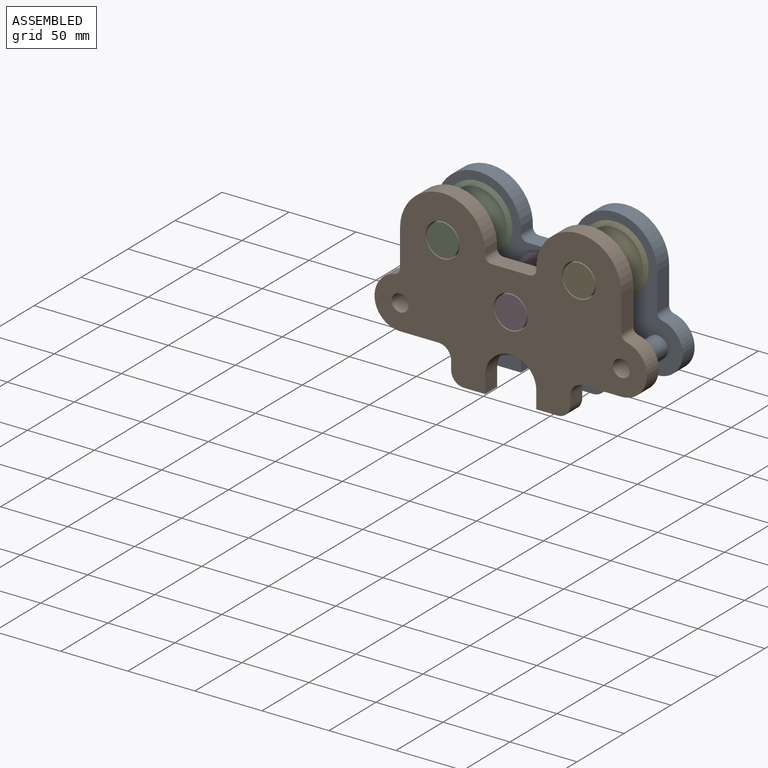
[diagram: assembled view]
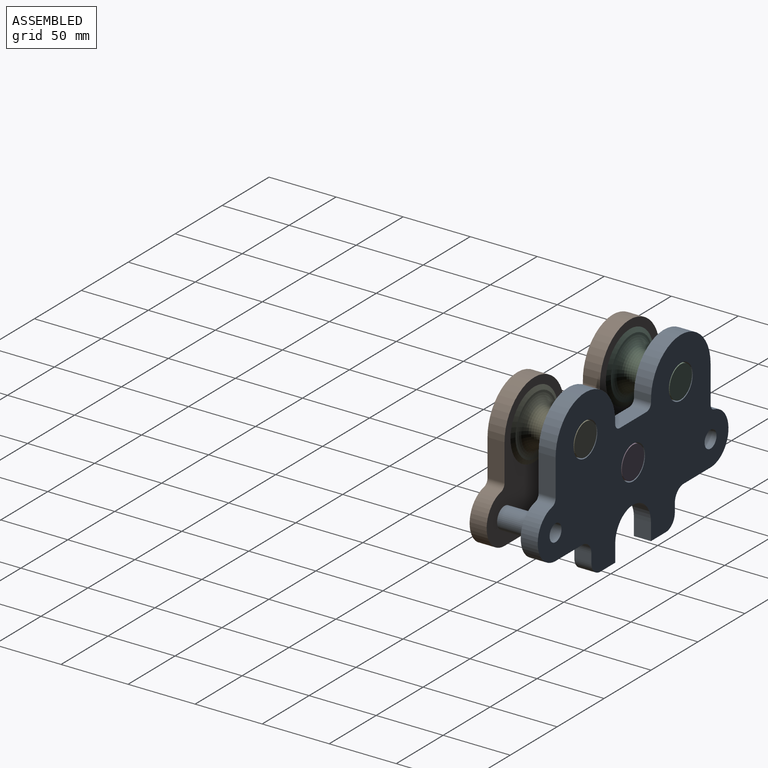
[diagram: assembled view, second angle]
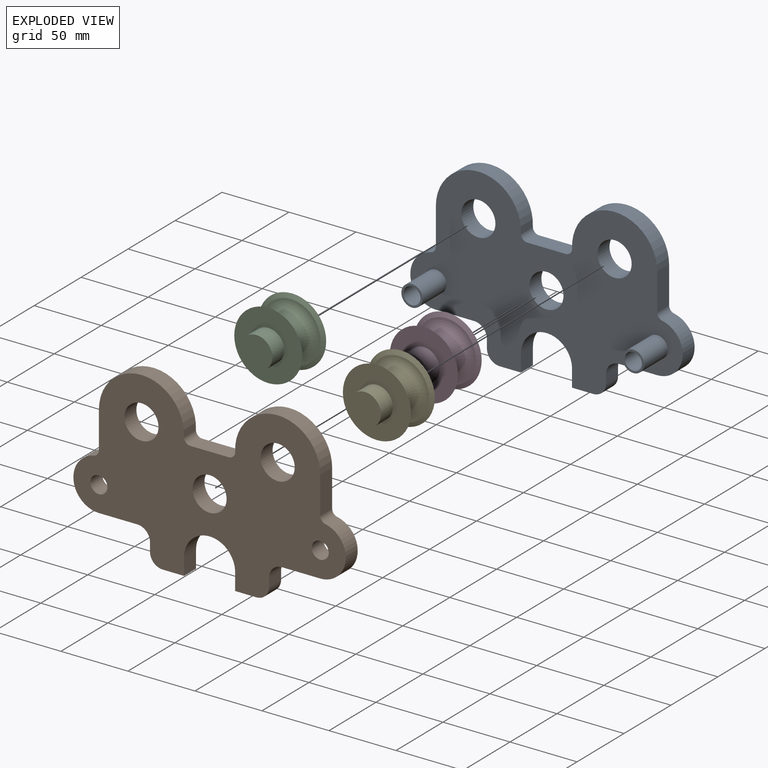
[diagram: exploded view]
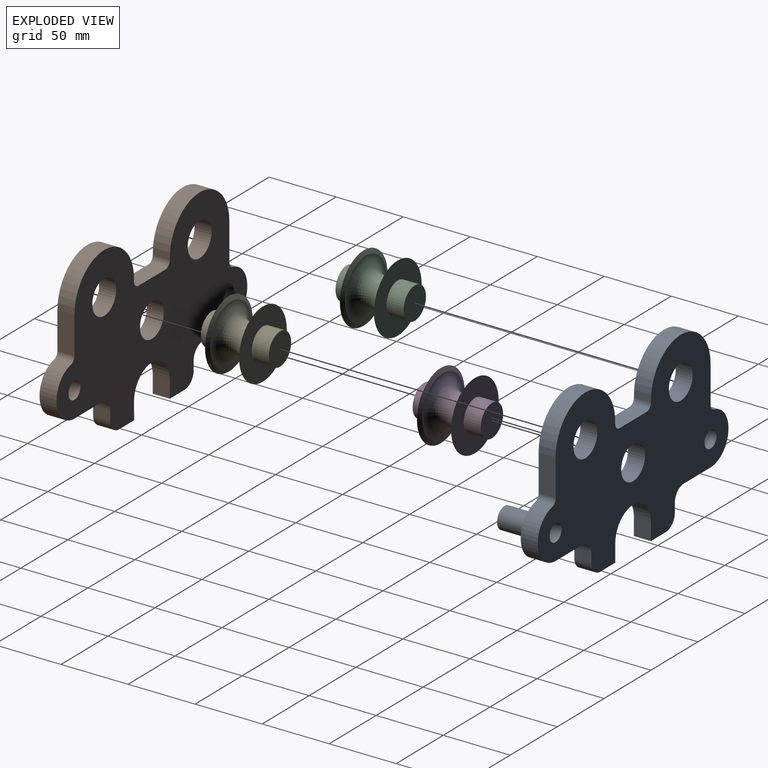
[diagram: exploded view, second angle]
ASSEMBLY  parts=5 mates=4
PART A: 35 faces, bbox 203.2x38.1x127 mm
  f0: cylinder r=9.53mm len=12.7mm, axis (0,1,0), area 190mm2, adj f1,f24,f29,f30
  f1: plane 15.89x12.7mm, normal (0,0,-1), area 201.9mm2, adj f0,f2,f29,f30
  f2: plane 12.7x12.7mm, normal (1,0,0), area 161.3mm2, adj f1,f3,f29,f30
  f3: cylinder r=19.05mm len=38.07mm, axis (0,1,0), area 746.4mm2, adj f2,f4,f29,f30
  f4: plane 13.77x12.7mm, normal (-1,0,0), area 174.9mm2, adj f3,f5,f29,f30
  f5: plane 15.89x12.7mm, normal (0,0,-1), area 201.9mm2, adj f4,f6,f29,f30
  f6: cylinder r=9.53mm len=12.7mm, axis (0,1,0), area 190mm2, adj f5,f7,f29,f30
  f7: plane 12.7x6.35mm, normal (1,0,0), area 80.6mm2, adj f6,f8,f29,f30
  f8: cylinder r=9.53mm len=12.7mm, axis (0,1,0), area 190mm2, adj f7,f9,f29,f30
  f9: plane 28.58x12.7mm, normal (0,0,-1), area 362.9mm2, adj f8,f10,f29,f30
  f10: cylinder r=19.05mm len=37.72mm, axis (0,1,0), area 711.3mm2, adj f9,f11,f29,f30
  f11: cylinder r=4.76mm len=12.7mm, axis (0,1,0), area 82.8mm2, adj f10,f12,f29,f30
  f12: plane 27.47x12.7mm, normal (1,0,0), area 348.9mm2, adj f11,f13,f29,f30
  f13: cylinder r=31.75mm len=63.5mm, axis (0,1,0), area 1284.3mm2, adj f12,f14,f29,f30
  f14: cylinder r=4.76mm len=12.7mm, axis (0,1,0), area 97.6mm2, adj f13,f15,f29,f30
  f15: plane 28.64x12.7mm, normal (0,0,1), area 363.8mm2, adj f14,f16,f29,f30
  f16: cylinder r=4.76mm len=12.7mm, axis (0,1,0), area 97.6mm2, adj f15,f17,f29,f30
  f17: cylinder r=31.75mm len=63.5mm, axis (0,1,0), area 1284.3mm2, adj f16,f18,f29,f30
  f18: plane 27.47x12.7mm, normal (-1,0,0), area 348.9mm2, adj f17,f19,f29,f30
  f19: cylinder r=4.76mm len=12.7mm, axis (0,1,0), area 82.8mm2, adj f18,f20,f29,f30
  f20: cylinder r=19.05mm len=37.72mm, axis (0,1,0), area 711.3mm2, adj f19,f21,f29,f30
  f21: plane 28.58x12.7mm, normal (0,0,-1), area 362.9mm2, adj f20,f22,f29,f30
  f22: cylinder r=9.53mm len=12.7mm, axis (0,1,0), area 190mm2, adj f21,f24,f29,f30
  f23: cylinder r=6.35mm len=38.1mm, axis (0,1,0), area 1520.1mm2, adj f30,f34
  f24: plane 12.7x6.35mm, normal (-1,0,0), area 80.6mm2, adj f0,f22,f29,f30
  f25: cylinder r=12.7mm len=25.4mm, axis (0,1,0), area 1013.4mm2, adj f29,f30
  f26: cylinder r=12.7mm len=25.4mm, axis (0,1,0), area 1013.4mm2, adj f29,f30
  f27: cylinder r=12.7mm len=25.4mm, axis (0,1,0), area 1013.4mm2, adj f29,f30
  f28: cylinder r=6.35mm len=38.1mm, axis (0,1,0), area 1520.1mm2, adj f30,f32
  f29: plane 203.2x127mm, normal (0,-1,0), area 14902.3mm2, adj f0,f1,f2,f3,f4,f5,f6,f7
  f30: plane 203.2x127mm, normal (0,1,0), area 15044.8mm2, adj f0,f1,f2,f3,f4,f5,f6,f7
  f31: cylinder r=7.94mm len=25.4mm, axis (0,1,0), area 1266.8mm2, adj f29,f32
  f32: plane 15.88x15.88mm, normal (0,-1,0), area 71.3mm2, adj f28,f31
  f33: cylinder r=7.94mm len=25.4mm, axis (0,1,0), area 1266.8mm2, adj f29,f34
  f34: plane 15.88x15.88mm, normal (0,-1,0), area 71.3mm2, adj f23,f33
PART B: 31 faces, bbox 203.2x12.7x127 mm
  f0: cylinder r=9.53mm len=12.7mm, axis (0,1,0), area 190mm2, adj f1,f24,f29,f30
  f1: plane 15.89x12.7mm, normal (0,0,-1), area 201.9mm2, adj f0,f2,f29,f30
  f2: plane 12.7x12.7mm, normal (1,0,0), area 161.3mm2, adj f1,f3,f29,f30
  f3: cylinder r=19.05mm len=38.07mm, axis (0,1,0), area 746.4mm2, adj f2,f4,f29,f30
  f4: plane 13.77x12.7mm, normal (-1,0,0), area 174.9mm2, adj f3,f5,f29,f30
  f5: plane 15.89x12.7mm, normal (0,0,-1), area 201.9mm2, adj f4,f6,f29,f30
  f6: cylinder r=9.53mm len=12.7mm, axis (0,1,0), area 190mm2, adj f5,f7,f29,f30
  f7: plane 12.7x6.35mm, normal (1,0,0), area 80.6mm2, adj f6,f8,f29,f30
  f8: cylinder r=9.53mm len=12.7mm, axis (0,1,0), area 190mm2, adj f7,f9,f29,f30
  f9: plane 28.58x12.7mm, normal (0,0,-1), area 362.9mm2, adj f8,f10,f29,f30
  f10: cylinder r=19.05mm len=37.72mm, axis (0,1,0), area 711.3mm2, adj f9,f11,f29,f30
  f11: cylinder r=4.76mm len=12.7mm, axis (0,1,0), area 82.8mm2, adj f10,f12,f29,f30
  f12: plane 27.47x12.7mm, normal (1,0,0), area 348.9mm2, adj f11,f13,f29,f30
  f13: cylinder r=31.75mm len=63.5mm, axis (0,1,0), area 1284.3mm2, adj f12,f14,f29,f30
  f14: cylinder r=4.76mm len=12.7mm, axis (0,1,0), area 97.6mm2, adj f13,f15,f29,f30
  f15: plane 28.64x12.7mm, normal (0,0,1), area 363.8mm2, adj f14,f16,f29,f30
  f16: cylinder r=4.76mm len=12.7mm, axis (0,1,0), area 97.6mm2, adj f15,f17,f29,f30
  f17: cylinder r=31.75mm len=63.5mm, axis (0,1,0), area 1284.3mm2, adj f16,f18,f29,f30
  f18: plane 27.47x12.7mm, normal (-1,0,0), area 348.9mm2, adj f17,f19,f29,f30
  f19: cylinder r=4.76mm len=12.7mm, axis (0,1,0), area 82.8mm2, adj f18,f20,f29,f30
  f20: cylinder r=19.05mm len=37.72mm, axis (0,1,0), area 711.3mm2, adj f19,f21,f29,f30
  f21: plane 28.58x12.7mm, normal (0,0,-1), area 362.9mm2, adj f20,f22,f29,f30
  f22: cylinder r=9.53mm len=12.7mm, axis (0,1,0), area 190mm2, adj f21,f24,f29,f30
  f23: cylinder r=6.35mm len=12.7mm, axis (0,1,0), area 506.7mm2, adj f29,f30
  f24: plane 12.7x6.35mm, normal (-1,0,0), area 80.6mm2, adj f0,f22,f29,f30
  f25: cylinder r=12.7mm len=25.4mm, axis (0,1,0), area 1013.4mm2, adj f29,f30
  f26: cylinder r=12.7mm len=25.4mm, axis (0,1,0), area 1013.4mm2, adj f29,f30
  f27: cylinder r=12.7mm len=25.4mm, axis (0,1,0), area 1013.4mm2, adj f29,f30
  f28: cylinder r=6.35mm len=12.7mm, axis (0,1,0), area 506.7mm2, adj f29,f30
  f29: plane 203.2x127mm, normal (0,-1,0), area 15044.8mm2, adj f0,f1,f2,f3,f4,f5,f6,f7
  f30: plane 203.2x127mm, normal (0,1,0), area 15044.8mm2, adj f0,f1,f2,f3,f4,f5,f6,f7
PART C: 9 faces, bbox 50.8x65.4x65.4 mm
  f0: plane 23.81x23.81mm, normal (-1,0,0), area 445.3mm2, adj f8
  f1: plane 23.81x23.81mm, normal (1,0,0), area 445.3mm2, adj f2
  f2: cylinder r=11.91mm len=23.81mm, axis (-1,0,0), area 950.1mm2, adj f1,f3
  f3: plane 50.8x50.8mm, normal (1,0,0), area 1581.5mm2, adj f2,f4
  f4: cone r=25.4mm half-angle=65deg, axis (1,0,0), area 524.1mm2, adj f3,f5
  f5: torus R=22.23mm, axis (-1,0,0), area 3340.2mm2, adj f4,f6
  f6: cone r=25.4mm half-angle=65deg, axis (-1,0,0), area 524.1mm2, adj f5,f7
  f7: plane 50.8x50.8mm, normal (-1,0,0), area 1581.5mm2, adj f6,f8
  f8: cylinder r=11.91mm len=23.81mm, axis (-1,0,0), area 950.1mm2, adj f0,f7
PART D: same geometry as C
PART E: same geometry as C
PLACE A t=(-27.27,91.2,185.35)mm
PLACE B t=(-27.27,53.1,185.35)mm
PLACE C rot(axis=(0.58,0.58,0.58),120deg) t=(-78.07,84.85,177.89)mm
PLACE D rot(axis=(0.58,0.58,0.58),120deg) t=(-27.27,84.85,142.96)mm
PLACE E rot(axis=(0.58,0.58,0.58),120deg) t=(23.53,84.85,177.89)mm
MATE fastened D.f2 <-> A.f25  axis (0,1,0) through (-27.27,97.55,142.96)mm
MATE fastened E.f2 <-> A.f13  axis (0,1,0) through (23.53,97.55,177.89)mm
MATE fastened C.f2 <-> A.f17  axis (0,1,0) through (-78.07,97.55,177.89)mm
MATE fastened B.f13 <-> E.f2  axis (0,-1,0) through (23.53,46.75,177.89)mm
